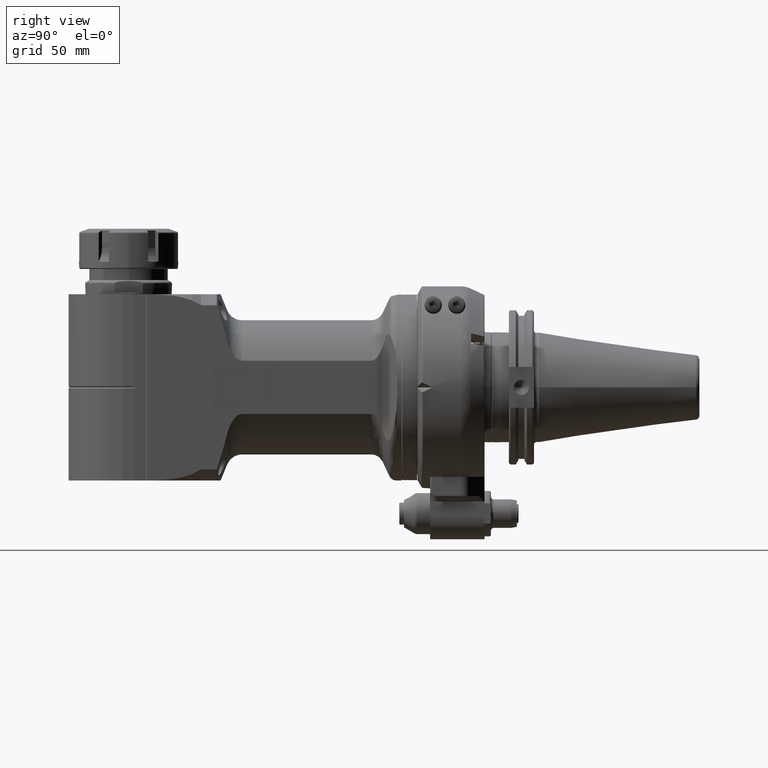
[diagram: clean part render]
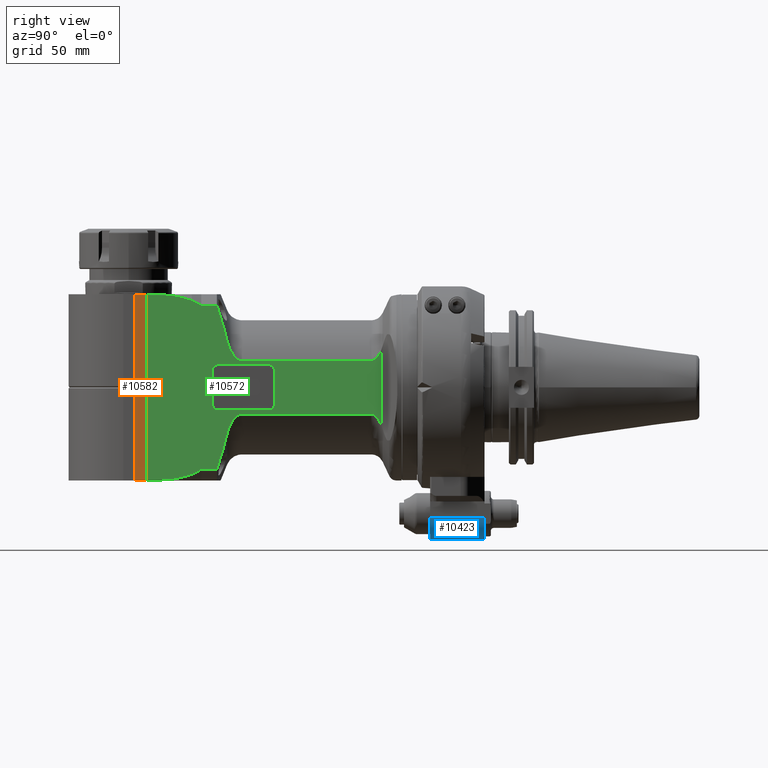
[diagram: same view with three faces highlighted in distinct colors, each labeled with its STEP entity id]
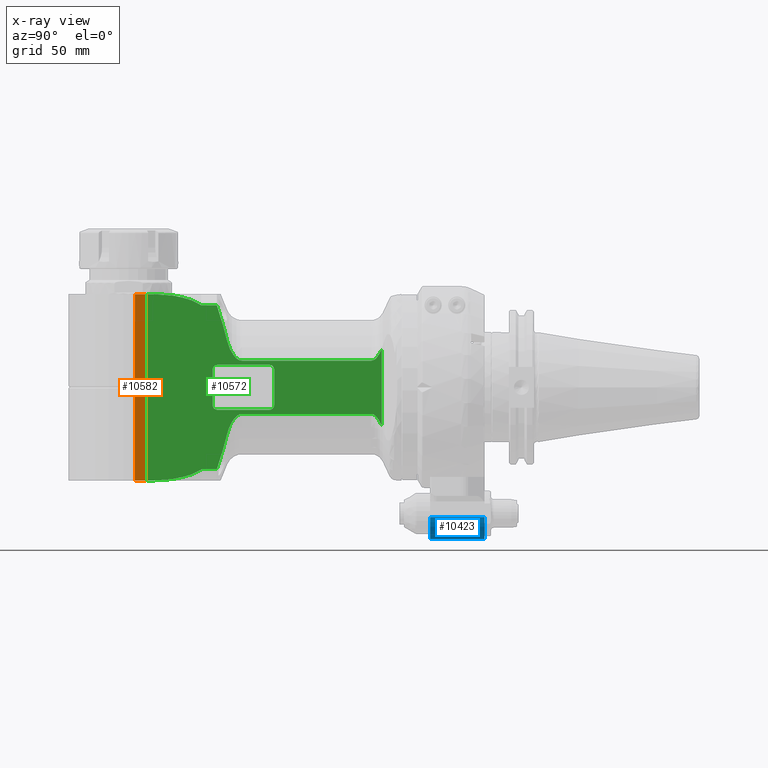
[diagram: x-ray of the same camera — body ghosted, the three highlighted faces saturated]
A machine part, right view with three faces highlighted in distinct colors.
The next image is the same camera in x-ray (body ghosted, the three faces saturated) — at least one of them is partly hidden behind the body in this view.
Their STEP definitions:

[orange] entity #10582 — the highlighted planar face has unit normal (1, 0, -0).
#400=B_SPLINE_CURVE_WITH_KNOTS('',3,(#32848,#32849,#32850,#32851,#32852,
#32853,#32854,#32855,#32856,#32857,#32858,#32859,#32860,#32861,#32862,#32863,
#32864,#32865),.UNSPECIFIED.,.F.,.F.,(4,2,2,2,2,2,2,2,4),(-1.29671341751255,
-1.27890562621851,-1.26036139578455,-1.25496241499678,-1.25047825602066,
-1.24599409704453,-1.24059511625676,-1.2220508858228,-1.20424309452876),
 .UNSPECIFIED.);
#1649=FACE_OUTER_BOUND('',#2330,.T.);
#2330=EDGE_LOOP('',(#9010,#9011,#9012,#9013,#9014,#9015,#9016,#9017));
#2684=(
BOUNDED_CURVE()
B_SPLINE_CURVE(2,(#32843,#32844,#32845),.UNSPECIFIED.,.F.,.F.)
B_SPLINE_CURVE_WITH_KNOTS((3,3),(-11.2094679871188,-10.9947182978618),
 .UNSPECIFIED.)
CURVE()
GEOMETRIC_REPRESENTATION_ITEM()
RATIONAL_B_SPLINE_CURVE((3.498423095476,3.50974628792297,3.51971864099973))
REPRESENTATION_ITEM('')
);
#2685=(
BOUNDED_CURVE()
B_SPLINE_CURVE(2,(#32867,#32868,#32869),.UNSPECIFIED.,.F.,.F.)
B_SPLINE_CURVE_WITH_KNOTS((3,3),(10.9947182978624,11.2094679871188),
 .UNSPECIFIED.)
CURVE()
GEOMETRIC_REPRESENTATION_ITEM()
RATIONAL_B_SPLINE_CURVE((3.51971864099965,3.50974628792292,3.49842309547598))
REPRESENTATION_ITEM('')
);
#3195=LINE('',#32230,#3879);
#3210=LINE('',#32488,#3894);
#3213=LINE('',#32520,#3897);
#3232=LINE('',#32836,#3916);
#3235=LINE('',#32870,#3919);
#3879=VECTOR('',#14072,6.954089679143);
#3894=VECTOR('',#14107,118.);
#3897=VECTOR('',#14112,6.954089679143);
#3916=VECTOR('',#14167,58.57117217808);
#3919=VECTOR('',#14176,58.57117217809);
#4824=VERTEX_POINT('',#32227);
#4825=VERTEX_POINT('',#32229);
#4866=VERTEX_POINT('',#32487);
#4873=VERTEX_POINT('',#32519);
#4918=VERTEX_POINT('',#32831);
#4921=VERTEX_POINT('',#32841);
#4922=VERTEX_POINT('',#32847);
#4923=VERTEX_POINT('',#32866);
#6234=EDGE_CURVE('',#4825,#4824,#3195,.T.);
#6279=EDGE_CURVE('',#4866,#4825,#3210,.T.);
#6287=EDGE_CURVE('',#4873,#4866,#3213,.T.);
#6343=EDGE_CURVE('',#4918,#4824,#3232,.T.);
#6347=EDGE_CURVE('',#4921,#4918,#2684,.T.);
#6348=EDGE_CURVE('',#4922,#4921,#400,.F.);
#6349=EDGE_CURVE('',#4923,#4922,#2685,.T.);
#6350=EDGE_CURVE('',#4873,#4923,#3235,.T.);
#9010=ORIENTED_EDGE('',*,*,#6279,.T.);
#9011=ORIENTED_EDGE('',*,*,#6234,.T.);
#9012=ORIENTED_EDGE('',*,*,#6343,.F.);
#9013=ORIENTED_EDGE('',*,*,#6347,.F.);
#9014=ORIENTED_EDGE('',*,*,#6348,.F.);
#9015=ORIENTED_EDGE('',*,*,#6349,.F.);
#9016=ORIENTED_EDGE('',*,*,#6350,.F.);
#9017=ORIENTED_EDGE('',*,*,#6287,.T.);
#10074=PLANE('',#11662);
#10582=ADVANCED_FACE('',(#1649),#10074,.T.);
#11662=AXIS2_PLACEMENT_3D('',#32846,#14174,#14175);
#14072=DIRECTION('',(1.,0.,0.));
#14107=DIRECTION('',(0.,-1.,0.));
#14112=DIRECTION('',(-1.,0.,0.));
#14167=DIRECTION('',(-1.552802629607E-14,-1.,-5.252840145468E-14));
#14174=DIRECTION('center_axis',(0.,0.,1.));
#14175=DIRECTION('ref_axis',(1.,0.,0.));
#14176=DIRECTION('',(1.01902672568E-14,-1.,3.675774974773E-14));
#32227=CARTESIAN_POINT('',(184.4440896791,-59.,38.5));
#32229=CARTESIAN_POINT('',(177.49,-59.,38.5));
#32230=CARTESIAN_POINT('',(177.49,-59.,38.5));
#32487=CARTESIAN_POINT('',(177.49,59.,38.5));
#32488=CARTESIAN_POINT('',(177.49,59.,38.5));
#32519=CARTESIAN_POINT('',(184.4440896791,59.,38.5));
#32520=CARTESIAN_POINT('',(184.4440896791,59.,38.5));
#32831=CARTESIAN_POINT('',(184.4440896791,-0.4288278219182,38.5));
#32836=CARTESIAN_POINT('',(184.4440896791,-0.4288278219182,38.5));
#32841=CARTESIAN_POINT('',(183.9553721413,-0.2828427124746,38.49999999994));
#32843=CARTESIAN_POINT('Ctrl Pts',(183.95537214134,-0.282842712557201,38.5));
#32844=CARTESIAN_POINT('Ctrl Pts',(184.201179861313,-0.360685952423825,
38.5));
#32845=CARTESIAN_POINT('Ctrl Pts',(184.444089679108,-0.428827821897551,
38.5));
#32846=CARTESIAN_POINT('Origin',(142.4802928643,-2.243538688163E-12,38.5));
#32847=CARTESIAN_POINT('',(183.9553721413,0.2828427124746,38.49999999994));
#32848=CARTESIAN_POINT('Ctrl Pts',(183.95537214128,-0.282842712535704,38.5));
#32849=CARTESIAN_POINT('Ctrl Pts',(183.897336940577,-0.26446392423884,38.5));
#32850=CARTESIAN_POINT('Ctrl Pts',(183.841275567451,-0.243007259209257,
38.5));
#32851=CARTESIAN_POINT('Ctrl Pts',(183.733444288948,-0.187731499242675,
38.5));
#32852=CARTESIAN_POINT('Ctrl Pts',(183.671542236878,-0.14686156325516,38.5));
#32853=CARTESIAN_POINT('Ctrl Pts',(183.624207947422,-0.0826026064768819,
38.5));
#32854=CARTESIAN_POINT('Ctrl Pts',(183.61366735716,-0.0637537377128007,
38.5));
#32855=CARTESIAN_POINT('Ctrl Pts',(183.602939430191,-0.0326056159471692,
38.5));
#32856=CARTESIAN_POINT('Ctrl Pts',(183.599792505776,-0.014947196587091,
38.5));
#32857=CARTESIAN_POINT('Ctrl Pts',(183.599792505776,0.014947196587091,38.5));
#32858=CARTESIAN_POINT('Ctrl Pts',(183.602939430191,0.0326056159471691,
38.5));
#32859=CARTESIAN_POINT('Ctrl Pts',(183.61366735716,0.0637537377128007,38.5));
#32860=CARTESIAN_POINT('Ctrl Pts',(183.624207947422,0.0826026064768819,
38.5));
#32861=CARTESIAN_POINT('Ctrl Pts',(183.671542236878,0.14686156325516,38.5));
#32862=CARTESIAN_POINT('Ctrl Pts',(183.733444288948,0.187731499242675,38.5));
#32863=CARTESIAN_POINT('Ctrl Pts',(183.841275567451,0.243007259209258,38.5));
#32864=CARTESIAN_POINT('Ctrl Pts',(183.897336940577,0.26446392423885,38.5));
#32865=CARTESIAN_POINT('Ctrl Pts',(183.95537214128,0.282842712535722,38.5));
#32866=CARTESIAN_POINT('',(184.4440896791,0.4288278219134,38.5));
#32867=CARTESIAN_POINT('Ctrl Pts',(184.444089679107,0.42882782189703,38.5));
#32868=CARTESIAN_POINT('Ctrl Pts',(184.201179861313,0.360685952423463,38.5));
#32869=CARTESIAN_POINT('Ctrl Pts',(183.95537214134,0.282842712557049,38.5));
#32870=CARTESIAN_POINT('',(184.4440896791,59.,38.5));

[blue] entity #10423 — the highlighted cylindrical surface (edge-blend (fillet) strip) has radius 14 mm, axis along (0, 1, -0).
#476=CYLINDRICAL_SURFACE('',#11350,14.);
#887=CIRCLE('',#11217,14.);
#947=CIRCLE('',#11325,14.);
#1490=FACE_OUTER_BOUND('',#2142,.T.);
#2142=EDGE_LOOP('',(#8165,#8166,#8167,#8168));
#3061=LINE('',#17360,#3745);
#3062=LINE('',#17362,#3746);
#3745=VECTOR('',#13376,34.5);
#3746=VECTOR('',#13379,34.5);
#4472=VERTEX_POINT('',#16833);
#4473=VERTEX_POINT('',#16835);
#4576=VERTEX_POINT('',#17254);
#4577=VERTEX_POINT('',#17256);
#5695=EDGE_CURVE('',#4472,#4473,#887,.T.);
#5842=EDGE_CURVE('',#4576,#4577,#947,.T.);
#5882=EDGE_CURVE('',#4576,#4473,#3061,.T.);
#5883=EDGE_CURVE('',#4472,#4577,#3062,.T.);
#8165=ORIENTED_EDGE('',*,*,#5882,.T.);
#8166=ORIENTED_EDGE('',*,*,#5695,.F.);
#8167=ORIENTED_EDGE('',*,*,#5883,.T.);
#8168=ORIENTED_EDGE('',*,*,#5842,.F.);
#10423=ADVANCED_FACE('',(#1490),#476,.T.);
#11217=AXIS2_PLACEMENT_3D('',#16836,#13012,#13013);
#11325=AXIS2_PLACEMENT_3D('',#17257,#13301,#13302);
#11350=AXIS2_PLACEMENT_3D('',#17361,#13377,#13378);
#13012=DIRECTION('center_axis',(0.,1.,0.));
#13013=DIRECTION('ref_axis',(1.,0.,0.));
#13301=DIRECTION('center_axis',(0.,-1.,0.));
#13302=DIRECTION('ref_axis',(0.,0.,-1.));
#13376=DIRECTION('',(0.,1.,0.));
#13377=DIRECTION('center_axis',(0.,1.,0.));
#13378=DIRECTION('ref_axis',(0.,0.,1.));
#13379=DIRECTION('',(0.,-1.,0.));
#16833=CARTESIAN_POINT('',(15.,42.499999769231,-82.25));
#16835=CARTESIAN_POINT('',(1.,42.499999769231,-96.25));
#16836=CARTESIAN_POINT('Origin',(1.,42.499999769231,-82.25));
#17254=CARTESIAN_POINT('',(1.,7.999999769231,-96.25));
#17256=CARTESIAN_POINT('',(15.,7.999999769231,-82.25));
#17257=CARTESIAN_POINT('Origin',(1.,7.999999769231,-82.25));
#17360=CARTESIAN_POINT('',(1.,7.999999769231,-96.25));
#17361=CARTESIAN_POINT('Origin',(1.,33.999999769231,-82.25));
#17362=CARTESIAN_POINT('',(15.,42.499999769231,-82.25));

[green] entity #10572 — the highlighted planar face has unit normal (-1, -0, 0).
#376=B_SPLINE_CURVE_WITH_KNOTS('',3,(#32361,#32362,#32363,#32364,#32365,
#32366),.UNSPECIFIED.,.F.,.F.,(4,1,1,4),(0.,0.3333333333333,0.6666666666667,
1.),.UNSPECIFIED.);
#377=B_SPLINE_CURVE_WITH_KNOTS('',3,(#32386,#32387,#32388,#32389,#32390,
#32391,#32392,#32393,#32394,#32395,#32396,#32397,#32398,#32399,#32400,#32401),
 .UNSPECIFIED.,.F.,.F.,(4,2,2,2,2,2,2,4),(-3.87272417458672,-3.74213566588568,
-3.58424256868517,-3.34026002813126,-3.09627748757734,-2.76403722322844,
-2.43179695887954,-2.32964145515378),.UNSPECIFIED.);
#378=B_SPLINE_CURVE_WITH_KNOTS('',3,(#32405,#32406,#32407,#32408,#32409,
#32410,#32411,#32412,#32413,#32414,#32415,#32416),.UNSPECIFIED.,.F.,.F.,
(4,2,2,2,2,4),(-4.15252590230402,-4.08844746216741,-3.81388997291121,-3.42421947444159,
-3.29920723142052,-3.19539997434443),.UNSPECIFIED.);
#379=B_SPLINE_CURVE_WITH_KNOTS('',3,(#32420,#32421,#32422,#32423,#32424,
#32425,#32426,#32427,#32428,#32429,#32430,#32431),.UNSPECIFIED.,.F.,.F.,
(4,2,2,2,2,4),(-3.19539997434443,-3.09159271726834,-2.96658047424726,-2.57690997577764,
-2.30235248652145,-2.23827404638483),.UNSPECIFIED.);
#380=B_SPLINE_CURVE_WITH_KNOTS('',3,(#32434,#32435,#32436,#32437,#32438,
#32439,#32440,#32441,#32442,#32443,#32444,#32445,#32446,#32447,#32448,#32449),
 .UNSPECIFIED.,.F.,.F.,(4,2,2,2,2,2,2,4),(-5.415806891101,-5.31365139029389,
-4.98141112594499,-4.64917086159609,-4.40518832104218,-4.16120578048826,
-4.00331268328775,-3.87272417458672),.UNSPECIFIED.);
#381=B_SPLINE_CURVE_WITH_KNOTS('',3,(#32464,#32465,#32466,#32467,#32468,
#32469),.UNSPECIFIED.,.F.,.F.,(4,1,1,4),(0.,0.3333333333333,0.6666666666667,
1.),.UNSPECIFIED.);
#667=FACE_BOUND('',#2316,.T.);
#1080=CIRCLE('',#11636,3.);
#1081=CIRCLE('',#11637,3.);
#1082=CIRCLE('',#11638,3.);
#1083=CIRCLE('',#11639,3.);
#1639=FACE_OUTER_BOUND('',#2315,.T.);
#2315=EDGE_LOOP('',(#8891,#8892,#8893,#8894,#8895,#8896,#8897,#8898,#8899,
#8900,#8901,#8902,#8903,#8904,#8905,#8906,#8907,#8908,#8909,#8910,#8911,
#8912));
#2316=EDGE_LOOP('',(#8913,#8914,#8915,#8916,#8917,#8918,#8919,#8920));
#2663=(
BOUNDED_CURVE()
B_SPLINE_CURVE(2,(#32258,#32259,#32260),.UNSPECIFIED.,.F.,.F.)
B_SPLINE_CURVE_WITH_KNOTS((3,3),(-29.5561159995629,-25.7673911904794),
 .UNSPECIFIED.)
CURVE()
GEOMETRIC_REPRESENTATION_ITEM()
RATIONAL_B_SPLINE_CURVE((2.08067472057084,2.31177789477125,2.46587430294809))
REPRESENTATION_ITEM('')
);
#2665=(
BOUNDED_CURVE()
B_SPLINE_CURVE(2,(#32368,#32369,#32370),.UNSPECIFIED.,.F.,.F.)
B_SPLINE_CURVE_WITH_KNOTS((3,3),(13.7015716343968,14.1629116740631),
 .UNSPECIFIED.)
CURVE()
GEOMETRIC_REPRESENTATION_ITEM()
RATIONAL_B_SPLINE_CURVE((1.00845357281592,1.00748065213701,1.00643262993596))
REPRESENTATION_ITEM('')
);
#2666=(
BOUNDED_CURVE()
B_SPLINE_CURVE(2,(#32372,#32373,#32374),.UNSPECIFIED.,.F.,.F.)
B_SPLINE_CURVE_WITH_KNOTS((3,3),(-30.4584975796416,-30.1859022780917),
 .UNSPECIFIED.)
CURVE()
GEOMETRIC_REPRESENTATION_ITEM()
RATIONAL_B_SPLINE_CURVE((1.05437775777872,1.06187220428482,1.0692281487286))
REPRESENTATION_ITEM('')
);
#2667=(
BOUNDED_CURVE()
B_SPLINE_CURVE(2,(#32376,#32377,#32378),.UNSPECIFIED.,.F.,.F.)
B_SPLINE_CURVE_WITH_KNOTS((3,3),(-22.6155379019538,-22.2607896225701),
 .UNSPECIFIED.)
CURVE()
GEOMETRIC_REPRESENTATION_ITEM()
RATIONAL_B_SPLINE_CURVE((1.11538024788094,1.12901431987397,1.14219227308165))
REPRESENTATION_ITEM('')
);
#2668=(
BOUNDED_CURVE()
B_SPLINE_CURVE(2,(#32382,#32383,#32384),.UNSPECIFIED.,.F.,.F.)
B_SPLINE_CURVE_WITH_KNOTS((3,3),(25.7645105067375,29.5528804855514),
 .UNSPECIFIED.)
CURVE()
GEOMETRIC_REPRESENTATION_ITEM()
RATIONAL_B_SPLINE_CURVE((2.46564935997468,2.31156700896006,2.08048491695856))
REPRESENTATION_ITEM('')
);
#2669=(
BOUNDED_CURVE()
B_SPLINE_CURVE(2,(#32453,#32454,#32455),.UNSPECIFIED.,.F.,.F.)
B_SPLINE_CURVE_WITH_KNOTS((3,3),(1.40762568317758,1.76237396237502),
 .UNSPECIFIED.)
CURVE()
GEOMETRIC_REPRESENTATION_ITEM()
RATIONAL_B_SPLINE_CURVE((1.11538024789551,1.12901431988113,1.14219227308189))
REPRESENTATION_ITEM('')
);
#2670=(
BOUNDED_CURVE()
B_SPLINE_CURVE(2,(#32457,#32458,#32459),.UNSPECIFIED.,.F.,.F.)
B_SPLINE_CURVE_WITH_KNOTS((3,3),(0.957840752369098,1.23043605408286),
 .UNSPECIFIED.)
CURVE()
GEOMETRIC_REPRESENTATION_ITEM()
RATIONAL_B_SPLINE_CURVE((1.05437775777871,1.06187220428932,1.06922814873744))
REPRESENTATION_ITEM('')
);
#2671=(
BOUNDED_CURVE()
B_SPLINE_CURVE(2,(#32461,#32462,#32463),.UNSPECIFIED.,.F.,.F.)
B_SPLINE_CURVE_WITH_KNOTS((3,3),(1.28712558198265,1.7484565402585),
 .UNSPECIFIED.)
CURVE()
GEOMETRIC_REPRESENTATION_ITEM()
RATIONAL_B_SPLINE_CURVE((1.0064329967265,1.00748108511041,1.00845407207189))
REPRESENTATION_ITEM('')
);
#3197=LINE('',#32234,#3881);
#3199=LINE('',#32357,#3883);
#3200=LINE('',#32359,#3884);
#3201=LINE('',#32380,#3885);
#3202=LINE('',#32403,#3886);
#3203=LINE('',#32418,#3887);
#3204=LINE('',#32433,#3888);
#3205=LINE('',#32451,#3889);
#3206=LINE('',#32472,#3890);
#3207=LINE('',#32476,#3891);
#3208=LINE('',#32480,#3892);
#3209=LINE('',#32484,#3893);
#3881=VECTOR('',#14074,10.);
#3883=VECTOR('',#14086,10.);
#3884=VECTOR('',#14087,10.);
#3885=VECTOR('',#14088,9.909409918709);
#3886=VECTOR('',#14089,81.96427638556);
#3887=VECTOR('',#14090,48.11105359791);
#3888=VECTOR('',#14091,81.96427638556);
#3889=VECTOR('',#14092,9.909409918666);
#3890=VECTOR('',#14093,22.5);
#3891=VECTOR('',#14096,33.);
#3892=VECTOR('',#14099,22.5);
#3893=VECTOR('',#14102,33.);
#4826=VERTEX_POINT('',#32231);
#4827=VERTEX_POINT('',#32233);
#4832=VERTEX_POINT('',#32256);
#4833=VERTEX_POINT('',#32257);
#4840=VERTEX_POINT('',#32356);
#4841=VERTEX_POINT('',#32358);
#4842=VERTEX_POINT('',#32360);
#4843=VERTEX_POINT('',#32367);
#4844=VERTEX_POINT('',#32371);
#4845=VERTEX_POINT('',#32375);
#4846=VERTEX_POINT('',#32379);
#4847=VERTEX_POINT('',#32381);
#4848=VERTEX_POINT('',#32385);
#4849=VERTEX_POINT('',#32402);
#4850=VERTEX_POINT('',#32404);
#4851=VERTEX_POINT('',#32417);
#4852=VERTEX_POINT('',#32419);
#4853=VERTEX_POINT('',#32432);
#4854=VERTEX_POINT('',#32450);
#4855=VERTEX_POINT('',#32452);
#4856=VERTEX_POINT('',#32456);
#4857=VERTEX_POINT('',#32460);
#4858=VERTEX_POINT('',#32470);
#4859=VERTEX_POINT('',#32471);
#4860=VERTEX_POINT('',#32473);
#4861=VERTEX_POINT('',#32475);
#4862=VERTEX_POINT('',#32477);
#4863=VERTEX_POINT('',#32479);
#4864=VERTEX_POINT('',#32481);
#4865=VERTEX_POINT('',#32483);
#6236=EDGE_CURVE('',#4826,#4827,#3197,.T.);
#6242=EDGE_CURVE('',#4832,#4833,#2663,.T.);
#6251=EDGE_CURVE('',#4840,#4826,#3199,.T.);
#6252=EDGE_CURVE('',#4840,#4841,#3200,.T.);
#6253=EDGE_CURVE('',#4842,#4841,#376,.T.);
#6254=EDGE_CURVE('',#4843,#4842,#2665,.T.);
#6255=EDGE_CURVE('',#4843,#4844,#2666,.T.);
#6256=EDGE_CURVE('',#4844,#4845,#2667,.T.);
#6257=EDGE_CURVE('',#4846,#4845,#3201,.T.);
#6258=EDGE_CURVE('',#4847,#4846,#2668,.T.);
#6259=EDGE_CURVE('',#4848,#4847,#377,.T.);
#6260=EDGE_CURVE('',#4849,#4848,#3202,.T.);
#6261=EDGE_CURVE('',#4850,#4849,#378,.T.);
#6262=EDGE_CURVE('',#4851,#4850,#3203,.T.);
#6263=EDGE_CURVE('',#4852,#4851,#379,.T.);
#6264=EDGE_CURVE('',#4853,#4852,#3204,.T.);
#6265=EDGE_CURVE('',#4833,#4853,#380,.T.);
#6266=EDGE_CURVE('',#4854,#4832,#3205,.T.);
#6267=EDGE_CURVE('',#4855,#4854,#2669,.T.);
#6268=EDGE_CURVE('',#4856,#4855,#2670,.T.);
#6269=EDGE_CURVE('',#4857,#4856,#2671,.T.);
#6270=EDGE_CURVE('',#4827,#4857,#381,.T.);
#6271=EDGE_CURVE('',#4858,#4859,#3206,.T.);
#6272=EDGE_CURVE('',#4859,#4860,#1080,.T.);
#6273=EDGE_CURVE('',#4860,#4861,#3207,.T.);
#6274=EDGE_CURVE('',#4861,#4862,#1081,.T.);
#6275=EDGE_CURVE('',#4862,#4863,#3208,.T.);
#6276=EDGE_CURVE('',#4863,#4864,#1082,.T.);
#6277=EDGE_CURVE('',#4864,#4865,#3209,.T.);
#6278=EDGE_CURVE('',#4865,#4858,#1083,.T.);
#8891=ORIENTED_EDGE('',*,*,#6251,.F.);
#8892=ORIENTED_EDGE('',*,*,#6252,.T.);
#8893=ORIENTED_EDGE('',*,*,#6253,.F.);
#8894=ORIENTED_EDGE('',*,*,#6254,.F.);
#8895=ORIENTED_EDGE('',*,*,#6255,.T.);
#8896=ORIENTED_EDGE('',*,*,#6256,.T.);
#8897=ORIENTED_EDGE('',*,*,#6257,.F.);
#8898=ORIENTED_EDGE('',*,*,#6258,.F.);
#8899=ORIENTED_EDGE('',*,*,#6259,.F.);
#8900=ORIENTED_EDGE('',*,*,#6260,.F.);
#8901=ORIENTED_EDGE('',*,*,#6261,.F.);
#8902=ORIENTED_EDGE('',*,*,#6262,.F.);
#8903=ORIENTED_EDGE('',*,*,#6263,.F.);
#8904=ORIENTED_EDGE('',*,*,#6264,.F.);
#8905=ORIENTED_EDGE('',*,*,#6265,.F.);
#8906=ORIENTED_EDGE('',*,*,#6242,.F.);
#8907=ORIENTED_EDGE('',*,*,#6266,.F.);
#8908=ORIENTED_EDGE('',*,*,#6267,.F.);
#8909=ORIENTED_EDGE('',*,*,#6268,.F.);
#8910=ORIENTED_EDGE('',*,*,#6269,.F.);
#8911=ORIENTED_EDGE('',*,*,#6270,.F.);
#8912=ORIENTED_EDGE('',*,*,#6236,.F.);
#8913=ORIENTED_EDGE('',*,*,#6271,.T.);
#8914=ORIENTED_EDGE('',*,*,#6272,.T.);
#8915=ORIENTED_EDGE('',*,*,#6273,.T.);
#8916=ORIENTED_EDGE('',*,*,#6274,.T.);
#8917=ORIENTED_EDGE('',*,*,#6275,.T.);
#8918=ORIENTED_EDGE('',*,*,#6276,.T.);
#8919=ORIENTED_EDGE('',*,*,#6277,.T.);
#8920=ORIENTED_EDGE('',*,*,#6278,.T.);
#10068=PLANE('',#11635);
#10572=ADVANCED_FACE('',(#1639,#667),#10068,.F.);
#11635=AXIS2_PLACEMENT_3D('',#32355,#14084,#14085);
#11636=AXIS2_PLACEMENT_3D('',#32474,#14094,#14095);
#11637=AXIS2_PLACEMENT_3D('',#32478,#14097,#14098);
#11638=AXIS2_PLACEMENT_3D('',#32482,#14100,#14101);
#11639=AXIS2_PLACEMENT_3D('',#32485,#14103,#14104);
#14074=DIRECTION('',(-1.,0.,0.));
#14084=DIRECTION('center_axis',(0.,0.,-1.));
#14085=DIRECTION('ref_axis',(1.,0.,0.));
#14086=DIRECTION('',(0.,-1.,0.));
#14087=DIRECTION('',(-1.,0.,0.));
#14088=DIRECTION('',(1.,3.472473526645E-11,-4.903108527133E-12));
#14089=DIRECTION('',(1.,0.,0.));
#14090=DIRECTION('',(0.,1.,0.));
#14091=DIRECTION('',(-1.,0.,0.));
#14092=DIRECTION('',(-1.,9.061931203008E-12,-6.518596025206E-12));
#14093=DIRECTION('',(0.,1.,0.));
#14094=DIRECTION('center_axis',(0.,0.,-1.));
#14095=DIRECTION('ref_axis',(-1.,0.,0.));
#14096=DIRECTION('',(1.,0.,0.));
#14097=DIRECTION('center_axis',(0.,0.,-1.));
#14098=DIRECTION('ref_axis',(0.,1.,0.));
#14099=DIRECTION('',(0.,-1.,0.));
#14100=DIRECTION('center_axis',(0.,0.,-1.));
#14101=DIRECTION('ref_axis',(1.,0.,0.));
#14102=DIRECTION('',(-1.,0.,0.));
#14103=DIRECTION('center_axis',(0.,0.,-1.));
#14104=DIRECTION('ref_axis',(0.,-1.,0.));
#32231=CARTESIAN_POINT('',(176.990000015095,-59.,38.9999999937475));
#32233=CARTESIAN_POINT('',(172.459510859,-59.,39.));
#32234=CARTESIAN_POINT('',(127.2846528,-59.,39.));
#32256=CARTESIAN_POINT('',(132.5905900813,-52.,39.));
#32257=CARTESIAN_POINT('',(126.026753371576,-29.2565562748938,39.0000000059146));
#32258=CARTESIAN_POINT('Ctrl Pts',(132.590590081216,-51.9999999996665,39.));
#32259=CARTESIAN_POINT('Ctrl Pts',(128.390073535049,-39.0041958984169,39.));
#32260=CARTESIAN_POINT('Ctrl Pts',(126.026753367979,-29.2565562678256,39.));
#32355=CARTESIAN_POINT('Origin',(120.569308,-111.0349607239,39.));
#32356=CARTESIAN_POINT('',(176.990000015095,59.,38.9999999937475));
#32357=CARTESIAN_POINT('',(176.99,-55.51748036195,39.));
#32358=CARTESIAN_POINT('',(172.459510859,59.,39.));
#32359=CARTESIAN_POINT('',(78.3846528,59.,39.));
#32360=CARTESIAN_POINT('',(160.5,58.12916651783,38.99999999999));
#32361=CARTESIAN_POINT('Ctrl Pts',(160.5,58.12916651783,38.99999999999));
#32362=CARTESIAN_POINT('Ctrl Pts',(161.8161145544,58.22522012785,38.99999999999));
#32363=CARTESIAN_POINT('Ctrl Pts',(164.456822439,58.41779834307,39.00000000001));
#32364=CARTESIAN_POINT('Ctrl Pts',(168.4432261039,58.70806984436,39.));
#32365=CARTESIAN_POINT('Ctrl Pts',(171.1179124551,58.90253281554,39.));
#32366=CARTESIAN_POINT('Ctrl Pts',(172.459510859,59.,39.));
#32367=CARTESIAN_POINT('',(154.5,56.92099788351,39.));
#32368=CARTESIAN_POINT('Ctrl Pts',(154.5,56.9209978835112,39.));
#32369=CARTESIAN_POINT('Ctrl Pts',(157.468496299665,57.5207362703268,39.));
#32370=CARTESIAN_POINT('Ctrl Pts',(160.500000000002,58.1291665178209,39.));
#32371=CARTESIAN_POINT('',(148.500000001783,55.0931030180549,38.9999999996801));
#32372=CARTESIAN_POINT('Ctrl Pts',(154.499999999999,56.9209978835136,39.));
#32373=CARTESIAN_POINT('Ctrl Pts',(151.45104469486,55.9970070722172,39.));
#32374=CARTESIAN_POINT('Ctrl Pts',(148.500000001897,55.0931030176817,39.));
#32375=CARTESIAN_POINT('',(142.4999999991,52.00000000014,38.99999999981));
#32376=CARTESIAN_POINT('Ctrl Pts',(148.500000001795,55.0931030180323,39.));
#32377=CARTESIAN_POINT('Ctrl Pts',(145.413352879521,53.5173712919158,39.));
#32378=CARTESIAN_POINT('Ctrl Pts',(142.499999999288,52.0000000001236,39.));
#32379=CARTESIAN_POINT('',(132.5905900813,52.,39.));
#32380=CARTESIAN_POINT('',(132.5905900813,52.,39.));
#32381=CARTESIAN_POINT('',(126.026753377,29.25655630513,39.));
#32382=CARTESIAN_POINT('Ctrl Pts',(126.026753376951,29.2565563051416,39.));
#32383=CARTESIAN_POINT('Ctrl Pts',(128.390073542695,39.0041959223061,39.));
#32384=CARTESIAN_POINT('Ctrl Pts',(132.590590081149,51.9999999996893,39.));
#32385=CARTESIAN_POINT('',(116.7549148316,16.88934575405,39.));
#32386=CARTESIAN_POINT('Ctrl Pts',(116.7549148316,16.8893457540545,39.));
#32387=CARTESIAN_POINT('Ctrl Pts',(117.190209860603,16.8893457540545,39.));
#32388=CARTESIAN_POINT('Ctrl Pts',(117.704376514716,16.9814673556169,39.));
#32389=CARTESIAN_POINT('Ctrl Pts',(118.614289136976,17.2925041296185,39.));
#32390=CARTESIAN_POINT('Ctrl Pts',(119.167755357731,17.5967389481057,39.));
#32391=CARTESIAN_POINT('Ctrl Pts',(120.259757568835,18.372638666751,39.));
#32392=CARTESIAN_POINT('Ctrl Pts',(120.893831971022,18.9907565785529,39.));
#32393=CARTESIAN_POINT('Ctrl Pts',(122.035567073903,20.3445195619539,39.));
#32394=CARTESIAN_POINT('Ctrl Pts',(122.544098595332,21.0794299620256,39.));
#32395=CARTESIAN_POINT('Ctrl Pts',(123.549644585135,22.7159291880335,39.));
#32396=CARTESIAN_POINT('Ctrl Pts',(124.105778345989,23.7965256195614,39.));
#32397=CARTESIAN_POINT('Ctrl Pts',(125.06014771361,26.0268013804311,39.));
#32398=CARTESIAN_POINT('Ctrl Pts',(125.458414205242,27.1764674935368,39.));
#32399=CARTESIAN_POINT('Ctrl Pts',(125.852954235781,28.5696657250586,39.));
#32400=CARTESIAN_POINT('Ctrl Pts',(125.942461728644,28.9088909219952,39.));
#32401=CARTESIAN_POINT('Ctrl Pts',(126.026753377014,29.2565563051267,39.));
#32402=CARTESIAN_POINT('',(34.79063844602,16.88934575405,39.));
#32403=CARTESIAN_POINT('',(34.79063844602,16.88934575405,39.));
#32404=CARTESIAN_POINT('',(28.30083020092,24.05552679895,39.));
#32405=CARTESIAN_POINT('Ctrl Pts',(28.3008302009246,24.0555267989517,39.));
#32406=CARTESIAN_POINT('Ctrl Pts',(28.3832637476631,23.8376811123842,39.));
#32407=CARTESIAN_POINT('Ctrl Pts',(28.4693912007745,23.6200911012014,39.));
#32408=CARTESIAN_POINT('Ctrl Pts',(28.9425135976565,22.4778926599153,39.));
#32409=CARTESIAN_POINT('Ctrl Pts',(29.3910385300965,21.5795416916554,39.));
#32410=CARTESIAN_POINT('Ctrl Pts',(30.5326068493982,19.6824304983136,39.));
#32411=CARTESIAN_POINT('Ctrl Pts',(31.4771803870093,18.4425634126605,39.));
#32412=CARTESIAN_POINT('Ctrl Pts',(32.8752639425143,17.4482409864561,39.));
#32413=CARTESIAN_POINT('Ctrl Pts',(33.3137814007137,17.2079257490347,39.));
#32414=CARTESIAN_POINT('Ctrl Pts',(34.0358042886363,16.9620750928508,39.));
#32415=CARTESIAN_POINT('Ctrl Pts',(34.4446142557664,16.8893457540545,39.));
#32416=CARTESIAN_POINT('Ctrl Pts',(34.79063844602,16.8893457540545,39.));
#32417=CARTESIAN_POINT('',(28.30083020092,-24.05552679895,39.));
#32418=CARTESIAN_POINT('',(28.30083020092,-24.05552679895,39.));
#32419=CARTESIAN_POINT('',(34.79063844602,-16.88934575405,39.));
#32420=CARTESIAN_POINT('Ctrl Pts',(34.79063844602,-16.8893457540545,39.));
#32421=CARTESIAN_POINT('Ctrl Pts',(34.4446142557664,-16.8893457540545,39.));
#32422=CARTESIAN_POINT('Ctrl Pts',(34.0358042886363,-16.9620750928508,39.));
#32423=CARTESIAN_POINT('Ctrl Pts',(33.3137814007137,-17.2079257490347,39.));
#32424=CARTESIAN_POINT('Ctrl Pts',(32.8752639425143,-17.4482409864561,39.));
#32425=CARTESIAN_POINT('Ctrl Pts',(31.4771803870093,-18.4425634126605,39.));
#32426=CARTESIAN_POINT('Ctrl Pts',(30.5326068493982,-19.6824304983136,39.));
#32427=CARTESIAN_POINT('Ctrl Pts',(29.3910385300965,-21.5795416916554,39.));
#32428=CARTESIAN_POINT('Ctrl Pts',(28.9425135976565,-22.4778926599153,39.));
#32429=CARTESIAN_POINT('Ctrl Pts',(28.4693912007745,-23.6200911012014,39.));
#32430=CARTESIAN_POINT('Ctrl Pts',(28.3832637476631,-23.8376811123842,39.));
#32431=CARTESIAN_POINT('Ctrl Pts',(28.3008302009246,-24.0555267989517,39.));
#32432=CARTESIAN_POINT('',(116.7549148316,-16.88934575405,39.));
#32433=CARTESIAN_POINT('',(116.7549148316,-16.88934575405,39.));
#32434=CARTESIAN_POINT('Ctrl Pts',(126.026753369789,-29.2565562753271,39.));
#32435=CARTESIAN_POINT('Ctrl Pts',(125.942461723531,-28.9088909026107,39.));
#32436=CARTESIAN_POINT('Ctrl Pts',(125.85295423313,-28.5696657156979,39.));
#32437=CARTESIAN_POINT('Ctrl Pts',(125.458414205242,-27.1764674935368,39.));
#32438=CARTESIAN_POINT('Ctrl Pts',(125.06014771361,-26.0268013804311,39.));
#32439=CARTESIAN_POINT('Ctrl Pts',(124.105778345989,-23.7965256195614,39.));
#32440=CARTESIAN_POINT('Ctrl Pts',(123.549644585135,-22.7159291880335,39.));
#32441=CARTESIAN_POINT('Ctrl Pts',(122.544098595332,-21.0794299620256,39.));
#32442=CARTESIAN_POINT('Ctrl Pts',(122.035567073903,-20.3445195619539,39.));
#32443=CARTESIAN_POINT('Ctrl Pts',(120.893831971022,-18.9907565785529,39.));
#32444=CARTESIAN_POINT('Ctrl Pts',(120.259757568835,-18.372638666751,39.));
#32445=CARTESIAN_POINT('Ctrl Pts',(119.167755357731,-17.5967389481057,39.));
#32446=CARTESIAN_POINT('Ctrl Pts',(118.614289136976,-17.2925041296185,39.));
#32447=CARTESIAN_POINT('Ctrl Pts',(117.704376514716,-16.9814673556169,39.));
#32448=CARTESIAN_POINT('Ctrl Pts',(117.190209860603,-16.8893457540545,39.));
#32449=CARTESIAN_POINT('Ctrl Pts',(116.7549148316,-16.8893457540545,39.));
#32450=CARTESIAN_POINT('',(142.4999999991,-52.,39.));
#32451=CARTESIAN_POINT('',(142.5,-52.00000000009,39.00000000007));
#32452=CARTESIAN_POINT('',(148.499999998475,-55.0931030162739,39.0000000002751));
#32453=CARTESIAN_POINT('Ctrl Pts',(148.499999998463,-55.0931030162969,39.));
#32454=CARTESIAN_POINT('Ctrl Pts',(145.413352877927,-53.5173712910507,39.));
#32455=CARTESIAN_POINT('Ctrl Pts',(142.499999999244,-52.0000000000657,39.));
#32456=CARTESIAN_POINT('',(154.5,-56.92099788351,38.99999999999));
#32457=CARTESIAN_POINT('Ctrl Pts',(154.500000000004,-56.9209978834969,39.));
#32458=CARTESIAN_POINT('Ctrl Pts',(151.451044693046,-55.997007071649,39.));
#32459=CARTESIAN_POINT('Ctrl Pts',(148.499999998379,-55.0931030165857,39.));
#32460=CARTESIAN_POINT('',(160.5,-58.12916651782,39.));
#32461=CARTESIAN_POINT('Ctrl Pts',(160.500000000001,-58.1291665178128,39.));
#32462=CARTESIAN_POINT('Ctrl Pts',(157.468496299665,-57.5207362703189,39.));
#32463=CARTESIAN_POINT('Ctrl Pts',(154.500000000001,-56.9209978835035,39.));
#32464=CARTESIAN_POINT('Ctrl Pts',(172.459510859,-59.,39.));
#32465=CARTESIAN_POINT('Ctrl Pts',(171.1179342064,-58.90253439577,39.));
#32466=CARTESIAN_POINT('Ctrl Pts',(168.4432768514,-58.70807353594,39.));
#32467=CARTESIAN_POINT('Ctrl Pts',(164.4568727532,-58.41780201032,39.));
#32468=CARTESIAN_POINT('Ctrl Pts',(161.8161361154,-58.22522170142,39.));
#32469=CARTESIAN_POINT('Ctrl Pts',(160.5,-58.12916651782,39.));
#32470=CARTESIAN_POINT('',(96.25491483158,-11.25,39.));
#32471=CARTESIAN_POINT('',(96.25491483158,11.25,39.));
#32472=CARTESIAN_POINT('',(96.25491483158,-11.25,39.));
#32473=CARTESIAN_POINT('',(99.25491483158,14.25,39.));
#32474=CARTESIAN_POINT('Origin',(99.25491483158,11.25,39.));
#32475=CARTESIAN_POINT('',(132.2549148316,14.25,39.));
#32476=CARTESIAN_POINT('',(99.25491483158,14.25,39.));
#32477=CARTESIAN_POINT('',(135.2549148316,11.25,39.));
#32478=CARTESIAN_POINT('Origin',(132.2549148316,11.25,39.));
#32479=CARTESIAN_POINT('',(135.2549148316,-11.25,39.));
#32480=CARTESIAN_POINT('',(135.2549148316,11.25,39.));
#32481=CARTESIAN_POINT('',(132.2549148316,-14.25,39.));
#32482=CARTESIAN_POINT('Origin',(132.2549148316,-11.25,39.));
#32483=CARTESIAN_POINT('',(99.25491483158,-14.25,39.));
#32484=CARTESIAN_POINT('',(132.2549148316,-14.25,39.));
#32485=CARTESIAN_POINT('Origin',(99.25491483158,-11.25,39.));